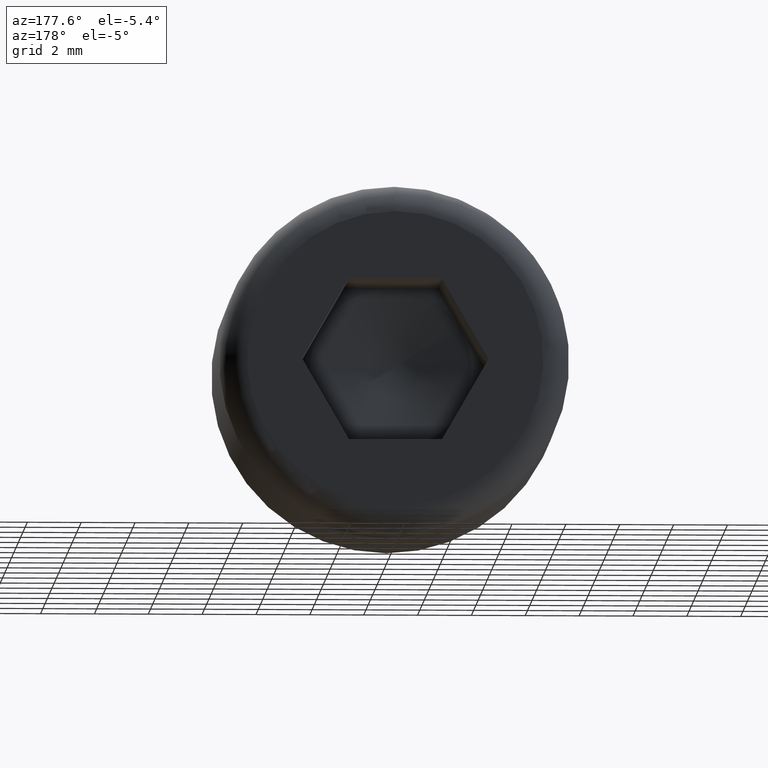
[diagram: clean part render]
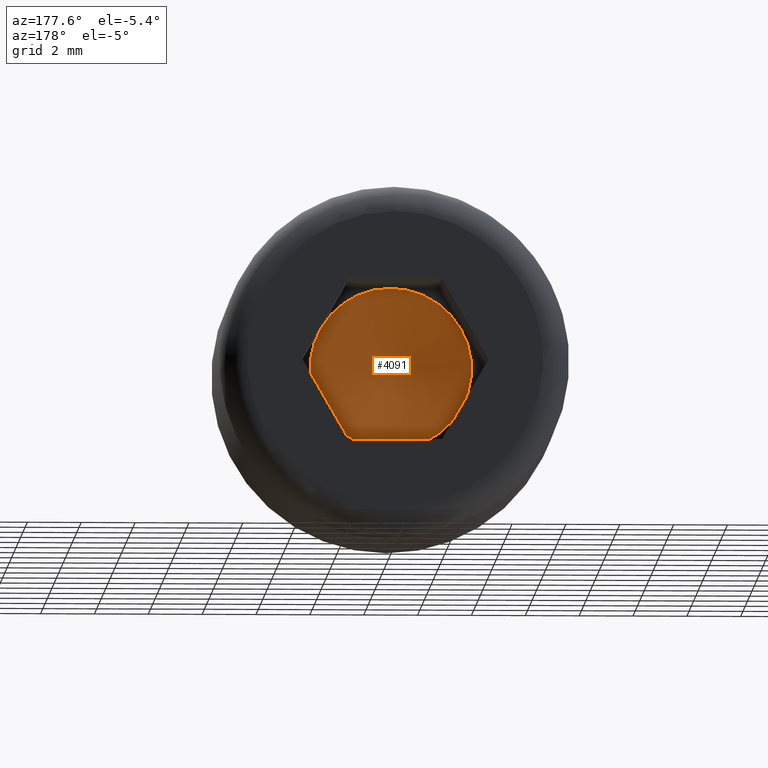
[diagram: same view with one face highlighted and labeled with its STEP entity id]
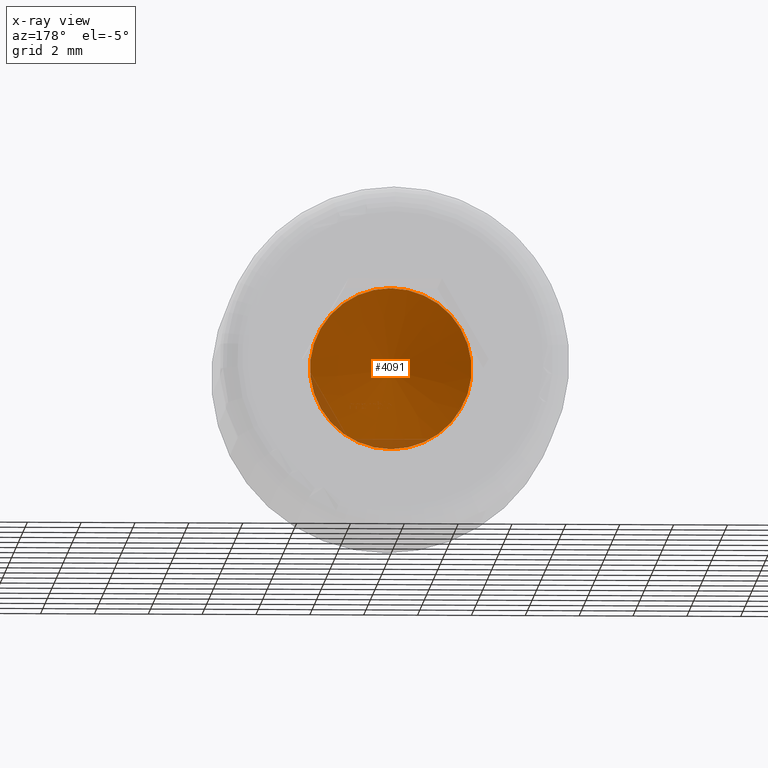
[diagram: x-ray of the same camera — body ghosted, the highlighted face saturated]
A machine part, auxiliary view. The second image highlights one B-rep face of the part: STEP entity #4091.
The next image is the same camera in x-ray: the body ghosted, the highlighted face saturated — about 5% of this face is hidden behind the body in this view.
In plain terms, the highlighted conical surface has half-angle 80.538 deg.
Its self-contained STEP definition (entity closure, byte-faithful):
#162 = AXIS2_PLACEMENT_3D ( 'NONE', #13498, #1972, #8381 ) ;
#858 = CARTESIAN_POINT ( 'NONE',  ( -2.598076211353315600, 3.999999999999997300, -1.499999999999999800 ) ) ;
#1023 = ORIENTED_EDGE ( 'NONE', *, *, #1501, .T. ) ;
#1220 = EDGE_CURVE ( 'NONE', #10310, #13811, #7318, .T. ) ;
#1501 = EDGE_CURVE ( 'NONE', #8252, #9045, #1762, .T. ) ;
#1762 = CIRCLE ( 'NONE', #6655, 3.000000000000000000 ) ;
#1844 = CARTESIAN_POINT ( 'NONE',  ( -3.154911678919006500E-013, 1003.500000000000100, 0.0000000000000000000 ) ) ;
#1954 = DIRECTION ( 'NONE',  ( -3.154911678919006400E-016, 1.000000000000000000, -0.0000000000000000000 ) ) ;
#1972 = DIRECTION ( 'NONE',  ( -3.154911678919006400E-016, 1.000000000000000000, -0.0000000000000000000 ) ) ;
#2347 = DIRECTION ( 'NONE',  ( -3.154911678919006400E-016, 1.000000000000000000, -0.0000000000000000000 ) ) ;
#2976 = ORIENTED_EDGE ( 'NONE', *, *, #1220, .T. ) ;
#3351 = DIRECTION ( 'NONE',  ( -1.000000000000000000, -2.891205793294678300E-016, 0.0000000000000000000 ) ) ;
#3984 = CARTESIAN_POINT ( 'NONE',  ( 2.598076211353316000, 3.999999999999999100, 1.500000000000000900 ) ) ;
#4091 = ADVANCED_FACE ( 'NONE', ( #11015 ), #15171, .F. ) ;
#4352 = AXIS2_PLACEMENT_3D ( 'NONE', #15622, #14339, #14181 ) ;
#4840 = ORIENTED_EDGE ( 'NONE', *, *, #12931, .T. ) ;
#5600 = CARTESIAN_POINT ( 'NONE',  ( -2.598076211353315600, 3.999999999999997300, 1.500000000000000200 ) ) ;
#5681 = DIRECTION ( 'NONE',  ( -1.000000000000000000, -2.891205793294678300E-016, 0.0000000000000000000 ) ) ;
#5848 = CARTESIAN_POINT ( 'NONE',  ( -1.577455839459496000E-016, 3.999999999999998200, 0.0000000000000000000 ) ) ;
#6242 = AXIS2_PLACEMENT_3D ( 'NONE', #1844, #1954, #10688 ) ;
#6655 = AXIS2_PLACEMENT_3D ( 'NONE', #15297, #14082, #8994 ) ;
#7012 = VERTEX_POINT ( 'NONE', #3984 ) ;
#7127 = DIRECTION ( 'NONE',  ( -3.154911678919006400E-016, 1.000000000000000000, -0.0000000000000000000 ) ) ;
#7237 = AXIS2_PLACEMENT_3D ( 'NONE', #5848, #7127, #3351 ) ;
#7318 = CIRCLE ( 'NONE', #162, 3.000000000000000000 ) ;
#7575 = CARTESIAN_POINT ( 'NONE',  ( -1.577455839459496000E-016, 3.999999999999998200, 0.0000000000000000000 ) ) ;
#8252 = VERTEX_POINT ( 'NONE', #858 ) ;
#8381 = DIRECTION ( 'NONE',  ( -1.000000000000000000, -2.891205793294678300E-016, 0.0000000000000000000 ) ) ;
#8546 = EDGE_CURVE ( 'NONE', #10404, #7012, #9356, .T. ) ;
#8713 = CARTESIAN_POINT ( 'NONE',  ( -1.577455839459496000E-016, 3.999999999999998200, 3.000000000000000000 ) ) ;
#8883 = CARTESIAN_POINT ( 'NONE',  ( -5.333242336302395600E-016, 3.999999999999998200, -3.000000000000000000 ) ) ;
#8994 = DIRECTION ( 'NONE',  ( -1.000000000000000000, -2.891205793294678300E-016, 0.0000000000000000000 ) ) ;
#9045 = VERTEX_POINT ( 'NONE', #5600 ) ;
#9356 = CIRCLE ( 'NONE', #14289, 3.000000000000000000 ) ;
#10172 = ORIENTED_EDGE ( 'NONE', *, *, #12978, .T. ) ;
#10310 = VERTEX_POINT ( 'NONE', #14887 ) ;
#10404 = VERTEX_POINT ( 'NONE', #8713 ) ;
#10489 = CIRCLE ( 'NONE', #7237, 3.000000000000000000 ) ;
#10688 = DIRECTION ( 'NONE',  ( -1.000000000000000000, -3.330669073875453800E-016, 0.0000000000000000000 ) ) ;
#10732 = ORIENTED_EDGE ( 'NONE', *, *, #8546, .T. ) ;
#11007 = ORIENTED_EDGE ( 'NONE', *, *, #13928, .T. ) ;
#11015 = FACE_OUTER_BOUND ( 'NONE', #12239, .T. ) ;
#11143 = AXIS2_PLACEMENT_3D ( 'NONE', #7575, #2347, #13668 ) ;
#12239 = EDGE_LOOP ( 'NONE', ( #4840, #10732, #10172, #2976, #11007, #1023 ) ) ;
#12931 = EDGE_CURVE ( 'NONE', #9045, #10404, #10489, .T. ) ;
#12978 = EDGE_CURVE ( 'NONE', #7012, #10310, #14235, .T. ) ;
#13249 = CARTESIAN_POINT ( 'NONE',  ( -1.577455839459496000E-016, 3.999999999999998200, 0.0000000000000000000 ) ) ;
#13498 = CARTESIAN_POINT ( 'NONE',  ( -1.577455839459496000E-016, 3.999999999999998200, 0.0000000000000000000 ) ) ;
#13668 = DIRECTION ( 'NONE',  ( -1.000000000000000000, -2.891205793294678300E-016, 0.0000000000000000000 ) ) ;
#13811 = VERTEX_POINT ( 'NONE', #8883 ) ;
#13928 = EDGE_CURVE ( 'NONE', #13811, #8252, #15982, .T. ) ;
#14082 = DIRECTION ( 'NONE',  ( -3.154911678919006400E-016, 1.000000000000000000, -0.0000000000000000000 ) ) ;
#14181 = DIRECTION ( 'NONE',  ( -1.000000000000000000, -2.891205793294678300E-016, 0.0000000000000000000 ) ) ;
#14235 = CIRCLE ( 'NONE', #11143, 3.000000000000000000 ) ;
#14289 = AXIS2_PLACEMENT_3D ( 'NONE', #13249, #15733, #5681 ) ;
#14339 = DIRECTION ( 'NONE',  ( -3.154911678919006400E-016, 1.000000000000000000, -0.0000000000000000000 ) ) ;
#14887 = CARTESIAN_POINT ( 'NONE',  ( 2.598076211353315600, 3.999999999999999100, -1.500000000000000900 ) ) ;
#15171 = CONICAL_SURFACE ( 'NONE', #6242, 6000.000000000028200, 1.405647649380270500 ) ;
#15297 = CARTESIAN_POINT ( 'NONE',  ( -1.577455839459496000E-016, 3.999999999999998200, 0.0000000000000000000 ) ) ;
#15622 = CARTESIAN_POINT ( 'NONE',  ( -1.577455839459496000E-016, 3.999999999999998200, 0.0000000000000000000 ) ) ;
#15733 = DIRECTION ( 'NONE',  ( -3.154911678919006400E-016, 1.000000000000000000, -0.0000000000000000000 ) ) ;
#15982 = CIRCLE ( 'NONE', #4352, 3.000000000000000000 ) ;